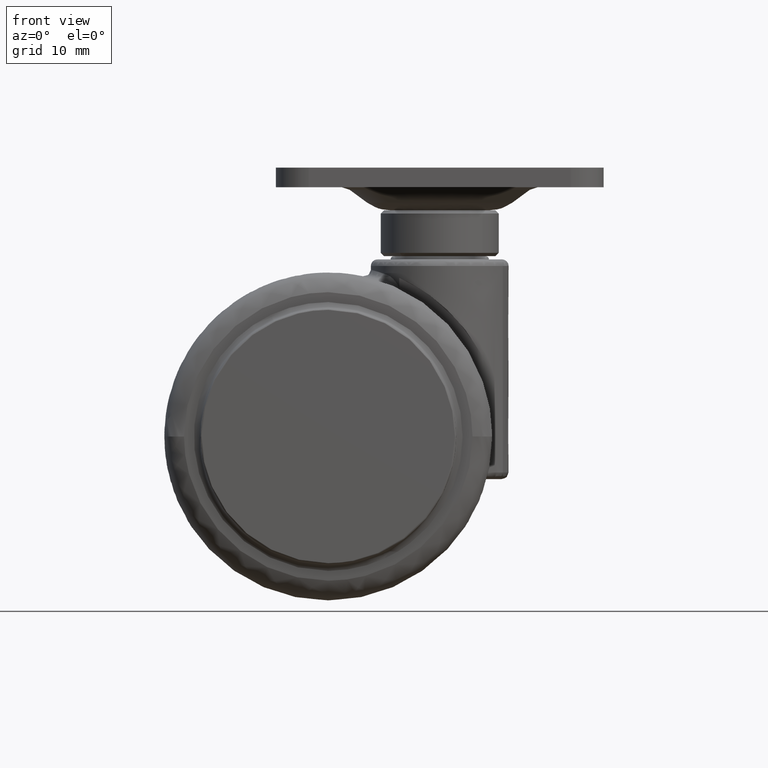
[diagram: clean part render]
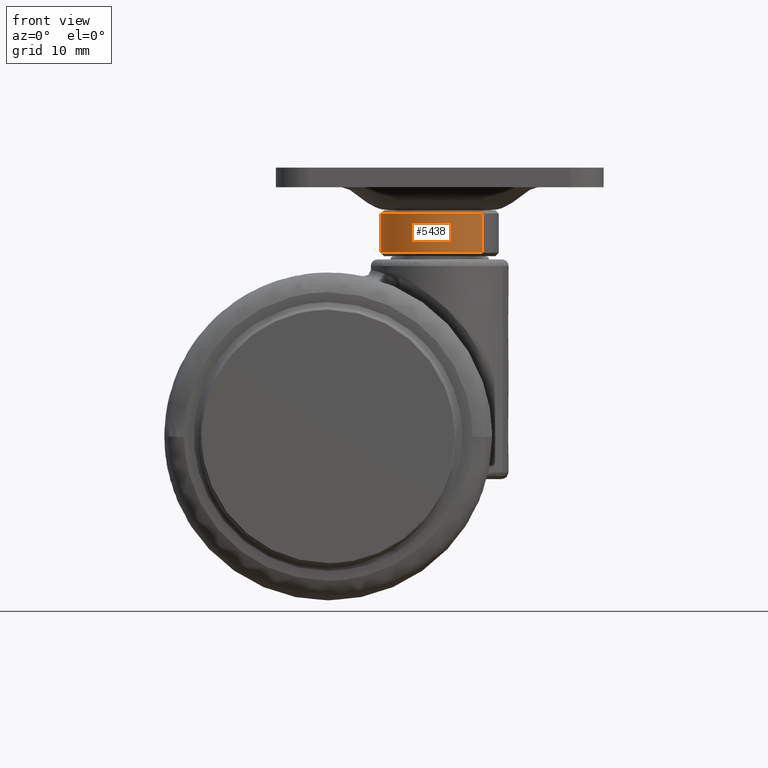
[diagram: same view with one face highlighted and labeled with its STEP entity id]
A machine part, front view. The second image highlights one B-rep face of the part: STEP entity #5438.
In plain terms, the highlighted face is a freeform B-spline surface patch.
Its self-contained STEP definition (entity closure, byte-faithful):
#4816=CARTESIAN_POINT('',(10.471630754194830,6.195191092700211,34.000000085753811));
#4817=VERTEX_POINT('',#4816);
#4880=CARTESIAN_POINT('',(23.528369245805202,-6.195191092700241,34.000000085753783));
#4881=VERTEX_POINT('',#4880);
#4935=CARTESIAN_POINT('',(8.000000000000002,0.0,34.0));
#4936=VERTEX_POINT('',#4935);
#4937=CARTESIAN_POINT('',(8.000000000000002,0.0,34.0));
#4938=CARTESIAN_POINT('',(7.999990656373371,0.391469673844101,34.000000005418748));
#4939=CARTESIAN_POINT('',(8.055796112964277,1.245594065722075,34.000000017241483));
#4940=CARTESIAN_POINT('',(8.305931286675460,2.433136300403709,34.000000033679413));
#4941=CARTESIAN_POINT('',(8.726788501959517,3.607809832177172,34.000000049939338));
#4942=CARTESIAN_POINT('',(9.378832085610009,4.877292253863298,34.000000067511550));
#4943=CARTESIAN_POINT('',(10.030590824388950,5.730590943464796,34.000000079322781));
#4944=CARTESIAN_POINT('',(10.471630754194830,6.195191092700211,34.000000085753811));
#4945=B_SPLINE_CURVE_WITH_KNOTS('',3,(#4937,#4938,#4939,#4940,#4941,#4942,#4943,#4944),.UNSPECIFIED.,.F.,.U.,(4,1,1,1,1,4),(5.050121E-009,1.174417771040799,2.562381696245975,3.630030533093110,4.911219625020842,6.833004036153964),.UNSPECIFIED.);
#4946=EDGE_CURVE('',#4936,#4817,#4945,.T.);
#4948=CARTESIAN_POINT('',(16.999999313028201,-8.999999999999973,34.0));
#4949=VERTEX_POINT('',#4948);
#4950=CARTESIAN_POINT('',(16.999999313028201,-8.999999999999973,34.0));
#4951=CARTESIAN_POINT('',(16.374130703787682,-9.000103113147317,34.000000000000028));
#4952=CARTESIAN_POINT('',(15.306524967728230,-8.888157436809676,33.999999999999837));
#4953=CARTESIAN_POINT('',(13.781969225968741,-8.446042119183733,34.000000000000142));
#4954=CARTESIAN_POINT('',(12.312140257507419,-7.750973716391988,34.0));
#4955=CARTESIAN_POINT('',(11.003094122123169,-6.780119342912659,34.000000000000057));
#4956=CARTESIAN_POINT('',(9.947938009340756,-5.644085838164668,33.999999999999652));
#4957=CARTESIAN_POINT('',(9.070705743566686,-4.365651258762626,34.000000000000377));
#4958=CARTESIAN_POINT('',(8.410227101579796,-2.875709519923398,34.000000000000078));
#4959=CARTESIAN_POINT('',(8.062206333756681,-1.325353800832687,33.999999999999822));
#4960=CARTESIAN_POINT('',(7.999991981663637,-0.404969110749257,33.999999999999957));
#4961=CARTESIAN_POINT('',(8.000000000000002,0.0,34.0));
#4962=B_SPLINE_CURVE_WITH_KNOTS('',3,(#4950,#4951,#4952,#4953,#4954,#4955,#4956,#4957,#4958,#4959,#4960,#4961),.UNSPECIFIED.,.F.,.U.,(4,1,1,1,1,1,1,1,1,4),(0.000000010418502,1.877592196397259,3.202968701513255,4.749240639444638,6.737289042127518,8.062653041500234,9.388012917672294,11.376079365862060,12.922336827039770,14.137255258684981),.UNSPECIFIED.);
#4963=EDGE_CURVE('',#4949,#4936,#4962,.T.);
#4965=CARTESIAN_POINT('',(23.528369245805202,-6.195191092700241,34.000000085753783));
#4966=CARTESIAN_POINT('',(23.201054270578069,-6.540152856975960,34.000000081454317));
#4967=CARTESIAN_POINT('',(22.491565412731578,-7.178005077893020,34.000000072134732));
#4968=CARTESIAN_POINT('',(21.305718741780979,-7.944511033751616,34.000000056558122));
#4969=CARTESIAN_POINT('',(20.120442028992670,-8.471623293238604,34.000000040988603));
#4970=CARTESIAN_POINT('',(18.692851295766921,-8.885470786063042,34.000000022236868));
#4971=CARTESIAN_POINT('',(17.665761951246200,-9.000136778297616,34.000000008745282));
#4972=CARTESIAN_POINT('',(16.999999313028201,-8.999999999999973,34.0));
#4973=B_SPLINE_CURVE_WITH_KNOTS('',3,(#4965,#4966,#4967,#4968,#4969,#4970,#4971,#4972),.UNSPECIFIED.,.F.,.U.,(4,1,1,1,1,4),(0.000000014444050,1.426602989841476,2.853216441870600,4.222742962718233,5.306968969935170,7.304215789145397),.UNSPECIFIED.);
#4974=EDGE_CURVE('',#4881,#4949,#4973,.T.);
#5296=CARTESIAN_POINT('',(10.471630757768590,6.195191034177180,28.0));
#5297=VERTEX_POINT('',#5296);
#5298=CARTESIAN_POINT('',(10.471630754194830,6.195191092700211,34.000000085753811));
#5299=CARTESIAN_POINT('',(10.471630757768590,6.195191034177180,28.0));
#5300=QUASI_UNIFORM_CURVE('',1,(#5298,#5299),.UNSPECIFIED.,.F.,.U.);
#5301=EDGE_CURVE('',#4817,#5297,#5300,.T.);
#5306=CARTESIAN_POINT('',(23.528369242231459,-6.195191034177219,28.0));
#5307=VERTEX_POINT('',#5306);
#5308=CARTESIAN_POINT('',(23.528369245805202,-6.195191092700241,34.000000085753783));
#5309=CARTESIAN_POINT('',(23.528369242231459,-6.195191034177219,28.0));
#5310=QUASI_UNIFORM_CURVE('',1,(#5308,#5309),.UNSPECIFIED.,.F.,.U.);
#5311=EDGE_CURVE('',#4881,#5307,#5310,.T.);
#5364=CARTESIAN_POINT('',(23.528369339110590,-6.195191181243784,34.149999999999999));
#5365=CARTESIAN_POINT('',(17.333178157866808,-12.723560520354372,34.149999999999999));
#5366=CARTESIAN_POINT('',(10.804808818756220,-6.528369339110586,34.149999999999999));
#5367=CARTESIAN_POINT('',(4.276439479645631,-0.333178157866802,34.149999999999999));
#5368=CARTESIAN_POINT('',(10.471630660889410,6.195191181243784,34.149999999999999));
#5369=CARTESIAN_POINT('',(23.528369339110590,-6.195191181243784,27.846250000000001));
#5370=CARTESIAN_POINT('',(17.333178157866808,-12.723560520354372,27.846250000000001));
#5371=CARTESIAN_POINT('',(10.804808818756220,-6.528369339110586,27.846250000000001));
#5372=CARTESIAN_POINT('',(4.276439479645631,-0.333178157866802,27.846250000000001));
#5373=CARTESIAN_POINT('',(10.471630660889410,6.195191181243784,27.846250000000001));
#5381=(BOUNDED_SURFACE()B_SPLINE_SURFACE(2,1,((#5364,#5369),(#5365,#5370),(#5366,#5371),(#5367,#5372),(#5368,#5373)),.UNSPECIFIED.,.F.,.F.,.U.)B_SPLINE_SURFACE_WITH_KNOTS((3,2,3),(2,2),(0.0,14.911688245431421,29.823376490862831),(0.0,6.303750000000002),.UNSPECIFIED.)GEOMETRIC_REPRESENTATION_ITEM()RATIONAL_B_SPLINE_SURFACE(((1.0,1.0),(0.707106781186548,0.707106781186548),(1.0,1.0),(0.707106781186548,0.707106781186548),(1.0,1.0)))REPRESENTATION_ITEM('')SURFACE());
#5382=ORIENTED_EDGE('',*,*,#5301,.T.);
#5383=CARTESIAN_POINT('',(8.000000000000002,0.0,28.0));
#5384=VERTEX_POINT('',#5383);
#5385=CARTESIAN_POINT('',(8.000000000000002,0.0,28.0));
#5386=CARTESIAN_POINT('',(7.999971787902259,0.462648982071014,28.000000000000021));
#5387=CARTESIAN_POINT('',(8.066011833108281,1.316760462043869,27.999999999999929));
#5388=CARTESIAN_POINT('',(8.361019247576166,2.639505839735940,28.000000000000071));
#5389=CARTESIAN_POINT('',(8.810385642171438,3.805819714840794,27.999999999999940));
#5390=CARTESIAN_POINT('',(9.506674101553285,5.050322598265553,28.000000000000089));
#5391=CARTESIAN_POINT('',(10.079622338150090,5.782193947982216,27.999999999999961));
#5392=CARTESIAN_POINT('',(10.471630757768590,6.195191034177180,28.0));
#5393=B_SPLINE_CURVE_WITH_KNOTS('',3,(#5385,#5386,#5387,#5388,#5389,#5390,#5391,#5392),.UNSPECIFIED.,.F.,.U.,(4,1,1,1,1,4),(5.049205E-009,1.387951062763792,2.562381675144580,4.057090324767562,5.124752988208408,6.833003979885611),.UNSPECIFIED.);
#5394=EDGE_CURVE('',#5384,#5297,#5393,.T.);
#5395=ORIENTED_EDGE('',*,*,#5394,.F.);
#5396=CARTESIAN_POINT('',(10.919687958079541,-6.635496220501618,28.000000085544709));
#5397=VERTEX_POINT('',#5396);
#5398=CARTESIAN_POINT('',(10.919687958079541,-6.635496220501618,28.000000085544709));
#5399=CARTESIAN_POINT('',(10.504206200772289,-6.254851438989674,28.000000080637491));
#5400=CARTESIAN_POINT('',(9.849817137127431,-5.530984044469034,28.000000071305251));
#5401=CARTESIAN_POINT('',(9.152758886483714,-4.451029809188919,28.000000057382710));
#5402=CARTESIAN_POINT('',(8.658484862031523,-3.436557953705969,28.000000044303938));
#5403=CARTESIAN_POINT('',(8.161057271919734,-2.001219124485655,28.000000025799910));
#5404=CARTESIAN_POINT('',(7.999712715307347,-0.796682843216735,28.000000010270750));
#5405=CARTESIAN_POINT('',(8.000000000000002,0.0,28.0));
#5406=B_SPLINE_CURVE_WITH_KNOTS('',3,(#5398,#5399,#5400,#5401,#5402,#5403,#5404,#5405),.UNSPECIFIED.,.F.,.U.,(4,1,1,1,1,4),(0.000000016053961,1.690449481027313,2.914576128218296,3.847228143313267,5.071346999008920,7.461295699854026),.UNSPECIFIED.);
#5407=EDGE_CURVE('',#5397,#5384,#5406,.T.);
#5408=ORIENTED_EDGE('',*,*,#5407,.F.);
#5409=CARTESIAN_POINT('',(16.999999313028201,-8.999999999999973,28.0));
#5410=VERTEX_POINT('',#5409);
#5411=CARTESIAN_POINT('',(16.999999313028201,-8.999999999999973,28.0));
#5412=CARTESIAN_POINT('',(16.269803466532998,-9.000170928479623,28.000000010273229));
#5413=CARTESIAN_POINT('',(15.192016353091280,-8.868094356266150,28.000000025436741));
#5414=CARTESIAN_POINT('',(13.761884964861521,-8.423508018642297,28.000000045557510));
#5415=CARTESIAN_POINT('',(12.398810369104590,-7.800395701897568,28.000000064734699));
#5416=CARTESIAN_POINT('',(11.457926616761540,-7.128937404035009,28.000000077972150));
#5417=CARTESIAN_POINT('',(10.919687958079541,-6.635496220501618,28.000000085544709));
#5418=B_SPLINE_CURVE_WITH_KNOTS('',3,(#5411,#5412,#5413,#5414,#5415,#5416,#5417),.UNSPECIFIED.,.F.,.U.,(4,1,1,1,4),(7.157441E-009,2.190540931287845,3.233652612968917,4.485380236488048,6.675921160628391),.UNSPECIFIED.);
#5419=EDGE_CURVE('',#5410,#5397,#5418,.T.);
#5420=ORIENTED_EDGE('',*,*,#5419,.F.);
#5421=CARTESIAN_POINT('',(23.528369242231459,-6.195191034177219,28.0));
#5422=CARTESIAN_POINT('',(23.070191680490410,-6.678218138432308,27.999999999999972));
#5423=CARTESIAN_POINT('',(22.338538703160332,-7.294958866013894,28.000000000000050));
#5424=CARTESIAN_POINT('',(21.131400222553211,-8.022010839746731,27.999999999999989));
#5425=CARTESIAN_POINT('',(20.120443496727141,-8.471624873683199,28.000000000000060));
#5426=CARTESIAN_POINT('',(18.692850936435509,-8.885470639073212,27.999999999999961));
#5427=CARTESIAN_POINT('',(17.665762099788932,-9.000136808187660,28.000000000000028));
#5428=CARTESIAN_POINT('',(16.999999313028201,-8.999999999999973,28.0));
#5429=B_SPLINE_CURVE_WITH_KNOTS('',3,(#5421,#5422,#5423,#5424,#5425,#5426,#5427,#5428),.UNSPECIFIED.,.F.,.U.,(4,1,1,1,1,4),(0.000000014440665,1.997246755758113,2.853216450694341,4.222742975777962,5.306968986349704,7.304215811737686),.UNSPECIFIED.);
#5430=EDGE_CURVE('',#5307,#5410,#5429,.T.);
#5431=ORIENTED_EDGE('',*,*,#5430,.F.);
#5432=ORIENTED_EDGE('',*,*,#5311,.F.);
#5433=ORIENTED_EDGE('',*,*,#4974,.T.);
#5434=ORIENTED_EDGE('',*,*,#4963,.T.);
#5435=ORIENTED_EDGE('',*,*,#4946,.T.);
#5436=EDGE_LOOP('',(#5382,#5395,#5408,#5420,#5431,#5432,#5433,#5434,#5435));
#5437=FACE_OUTER_BOUND('',#5436,.T.);
#5438=ADVANCED_FACE('',(#5437),#5381,.T.);